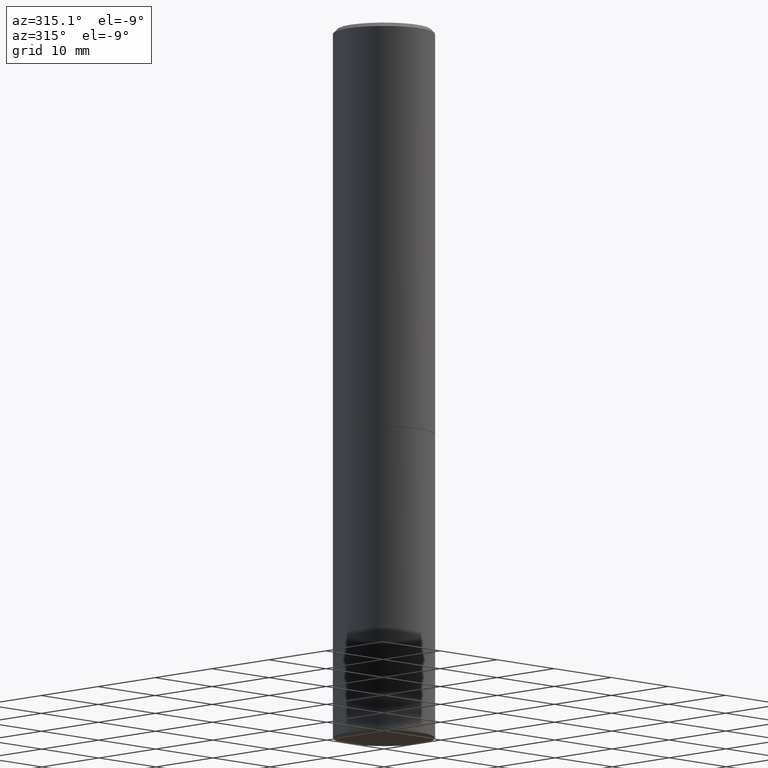
[diagram: clean part render]
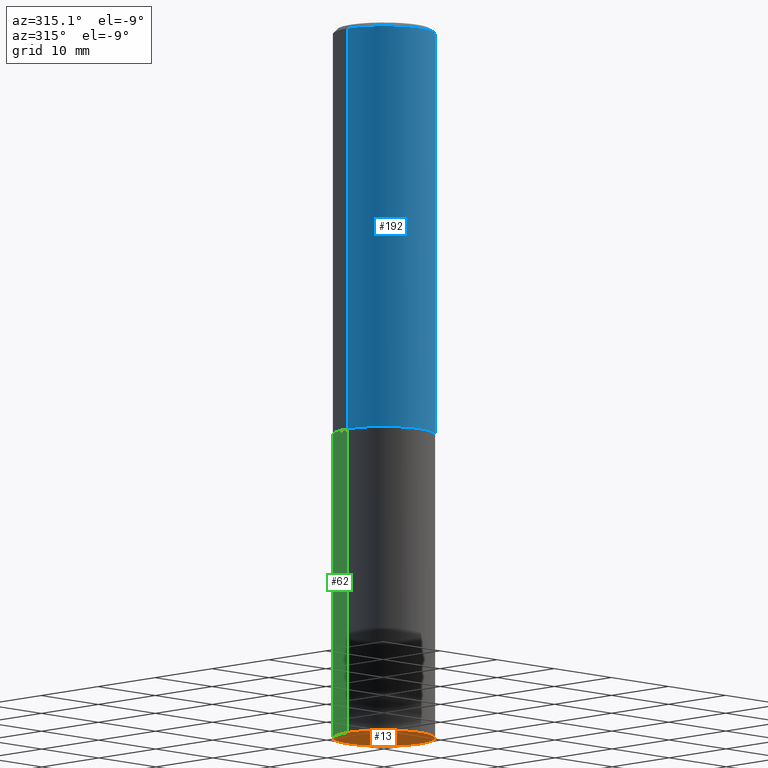
[diagram: same view with three faces highlighted in distinct colors, each labeled with its STEP entity id]
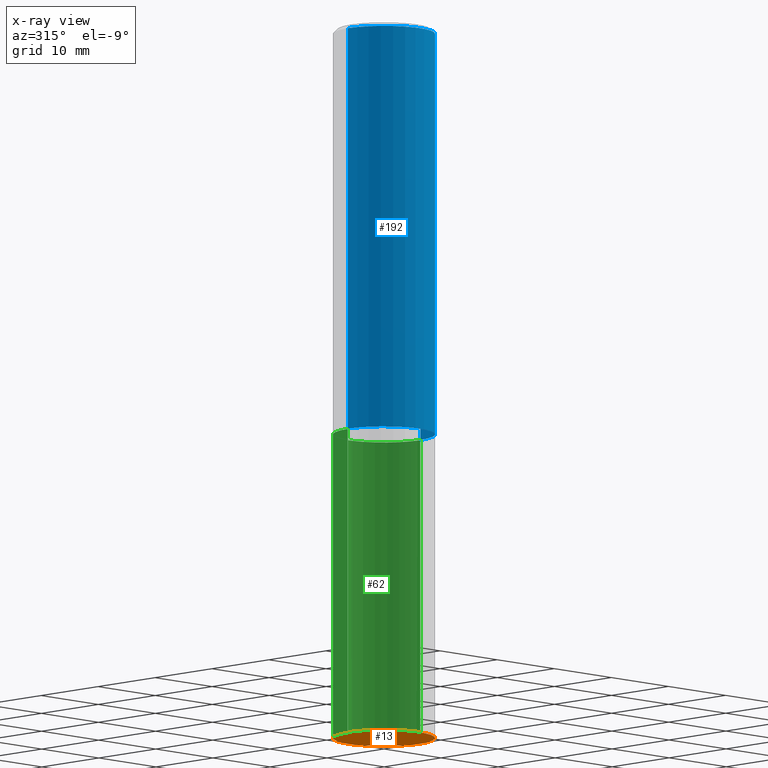
[diagram: x-ray of the same camera — body ghosted, the three highlighted faces saturated]
A machine part, auxiliary view with three faces highlighted in distinct colors.
The next image is the same camera in x-ray (body ghosted, the three faces saturated) — at least one of them is partly hidden behind the body in this view.
Their STEP definitions:

[orange] entity #13 — the highlighted planar face has unit normal (0, -0, -1).
#7 = CARTESIAN_POINT ( 'NONE',  ( 8.559140821647976968E-29, -1.222018468595100934E-14, -3.500000000000000000 ) ) ;
#13 = ADVANCED_FACE ( 'NONE', ( #319 ), #65, .T. ) ;
#33 = CIRCLE ( 'NONE', #347, 0.2500000000000000000 ) ;
#65 = PLANE ( 'NONE',  #170 ) ;
#95 = DIRECTION ( 'NONE',  ( 2.438088387897960049E-29, -3.491481338843145188E-15, -1.000000000000000000 ) ) ;
#98 = EDGE_CURVE ( 'NONE', #240, #189, #33, .T. ) ;
#129 = CARTESIAN_POINT ( 'NONE',  ( 8.559140821647976968E-29, -1.222018468595100934E-14, -3.500000000000000000 ) ) ;
#130 = CARTESIAN_POINT ( 'NONE',  ( 1.745740669421652072E-15, 0.2499999999999877598, -3.500000000000000888 ) ) ;
#137 = DIRECTION ( 'NONE',  ( -2.445468806185136597E-29, 3.491481338843145583E-15, 1.000000000000000000 ) ) ;
#139 = AXIS2_PLACEMENT_3D ( 'NONE', #7, #137, #220 ) ;
#144 = ORIENTED_EDGE ( 'NONE', *, *, #161, .F. ) ;
#160 = CARTESIAN_POINT ( 'NONE',  ( -0.2500000000000000000, -7.825216842418399394E-15, -3.500000000000000000 ) ) ;
#161 = EDGE_CURVE ( 'NONE', #189, #240, #223, .T. ) ;
#164 = ORIENTED_EDGE ( 'NONE', *, *, #98, .F. ) ;
#170 = AXIS2_PLACEMENT_3D ( 'NONE', #130, #95, #215 ) ;
#189 = VERTEX_POINT ( 'NONE', #160 ) ;
#215 = DIRECTION ( 'NONE',  ( -1.000000000000000000, 6.982962677686265922E-15, -4.876176775795935793E-29 ) ) ;
#220 = DIRECTION ( 'NONE',  ( 1.000000000000000000, -6.982962677686270655E-15, 0.000000000000000000 ) ) ;
#223 = CIRCLE ( 'NONE', #139, 0.2500000000000000000 ) ;
#227 = EDGE_LOOP ( 'NONE', ( #164, #144 ) ) ;
#240 = VERTEX_POINT ( 'NONE', #362 ) ;
#295 = DIRECTION ( 'NONE',  ( -2.445468806185136597E-29, 3.491481338843145583E-15, 1.000000000000000000 ) ) ;
#319 = FACE_OUTER_BOUND ( 'NONE', #227, .T. ) ;
#347 = AXIS2_PLACEMENT_3D ( 'NONE', #129, #295, #351 ) ;
#351 = DIRECTION ( 'NONE',  ( 1.000000000000000000, -6.982962677686270655E-15, 0.000000000000000000 ) ) ;
#362 = CARTESIAN_POINT ( 'NONE',  ( 0.2500000000000000000, -1.396592535537257602E-14, -3.500000000000000000 ) ) ;

[blue] entity #192 — the highlighted cylindrical surface (partial cylindrical patch) has radius 6.35 mm, axis along (-0, 0, 1).
#5 = ORIENTED_EDGE ( 'NONE', *, *, #41, .F. ) ;
#15 = DIRECTION ( 'NONE',  ( -2.445468806185136597E-29, 3.491481338843145583E-15, 1.000000000000000000 ) ) ;
#23 = LINE ( 'NONE', #105, #312 ) ;
#41 = EDGE_CURVE ( 'NONE', #210, #194, #247, .T. ) ;
#43 = CARTESIAN_POINT ( 'NONE',  ( 4.890937612370287172E-31, -6.982962677686310098E-17, -0.02000000000000005593 ) ) ;
#68 = CARTESIAN_POINT ( 'NONE',  ( -0.2500000000000000000, -1.748293572161903489E-15, -1.998999999999999888 ) ) ;
#72 = CARTESIAN_POINT ( 'NONE',  ( -0.2499999999999998057, 1.675911042644702196E-15, -0.02000000000000005593 ) ) ;
#80 = DIRECTION ( 'NONE',  ( -2.445468806185136877E-29, 3.491481338843145188E-15, 1.000000000000000000 ) ) ;
#96 = CIRCLE ( 'NONE', #202, 0.2499999999999998057 ) ;
#100 = CARTESIAN_POINT ( 'NONE',  ( 4.888492143564087591E-29, -6.979471196347447369E-15, -1.998999999999999888 ) ) ;
#105 = CARTESIAN_POINT ( 'NONE',  ( 0.2499999999999998890, -1.745740669421565889E-15, 1.219044193948983388E-29 ) ) ;
#109 = EDGE_CURVE ( 'NONE', #210, #236, #116, .T. ) ;
#116 = CIRCLE ( 'NONE', #188, 0.2500000000000000000 ) ;
#120 = ORIENTED_EDGE ( 'NONE', *, *, #141, .F. ) ;
#127 = DIRECTION ( 'NONE',  ( -2.445468806185136597E-29, 3.491481338843145583E-15, 1.000000000000000000 ) ) ;
#141 = EDGE_CURVE ( 'NONE', #194, #342, #96, .T. ) ;
#148 = ORIENTED_EDGE ( 'NONE', *, *, #245, .T. ) ;
#162 = CARTESIAN_POINT ( 'NONE',  ( 0.000000000000000000, 0.000000000000000000, 0.000000000000000000 ) ) ;
#165 = DIRECTION ( 'NONE',  ( -2.445468806185136597E-29, 3.491481338843145583E-15, 1.000000000000000000 ) ) ;
#179 = DIRECTION ( 'NONE',  ( 1.000000000000000000, -6.982962677686266711E-15, 0.000000000000000000 ) ) ;
#188 = AXIS2_PLACEMENT_3D ( 'NONE', #100, #165, #179 ) ;
#192 = ADVANCED_FACE ( 'NONE', ( #329 ), #356, .T. ) ;
#194 = VERTEX_POINT ( 'NONE', #72 ) ;
#202 = AXIS2_PLACEMENT_3D ( 'NONE', #43, #15, #249 ) ;
#210 = VERTEX_POINT ( 'NONE', #68 ) ;
#212 = ORIENTED_EDGE ( 'NONE', *, *, #109, .T. ) ;
#219 = EDGE_LOOP ( 'NONE', ( #5, #212, #148, #120 ) ) ;
#221 = CARTESIAN_POINT ( 'NONE',  ( -0.2499999999999998890, 1.776356839400249676E-15, -1.229733772563726025E-29 ) ) ;
#236 = VERTEX_POINT ( 'NONE', #272 ) ;
#245 = EDGE_CURVE ( 'NONE', #236, #342, #23, .T. ) ;
#246 = DIRECTION ( 'NONE',  ( 1.000000000000000000, -6.982962677686266711E-15, 4.876176775795935793E-29 ) ) ;
#247 = LINE ( 'NONE', #221, #364 ) ;
#249 = DIRECTION ( 'NONE',  ( 1.000000000000000000, -6.982962677686266711E-15, 0.000000000000000000 ) ) ;
#272 = CARTESIAN_POINT ( 'NONE',  ( 0.2500000000000000000, -8.725211865769014047E-15, -1.998999999999999888 ) ) ;
#285 = CARTESIAN_POINT ( 'NONE',  ( 0.2499999999999998057, -1.784954126219744611E-15, -0.02000000000000005593 ) ) ;
#297 = DIRECTION ( 'NONE',  ( -2.445468806185136877E-29, 3.491481338843145188E-15, 1.000000000000000000 ) ) ;
#311 = AXIS2_PLACEMENT_3D ( 'NONE', #162, #127, #246 ) ;
#312 = VECTOR ( 'NONE', #80, 39.37007874015748143 ) ;
#329 = FACE_OUTER_BOUND ( 'NONE', #219, .T. ) ;
#342 = VERTEX_POINT ( 'NONE', #285 ) ;
#356 = CYLINDRICAL_SURFACE ( 'NONE', #311, 0.2499999999999998890 ) ;
#364 = VECTOR ( 'NONE', #297, 39.37007874015748143 ) ;

[green] entity #62 — the highlighted cylindrical surface (partial cylindrical patch) has radius 6.35 mm, axis along (-0, 0, 1).
#3 = EDGE_CURVE ( 'NONE', #189, #167, #10, .T. ) ;
#4 = DIRECTION ( 'NONE',  ( 1.000000000000000000, -6.982962677686266711E-15, 4.876176775795935793E-29 ) ) ;
#8 = ORIENTED_EDGE ( 'NONE', *, *, #98, .T. ) ;
#10 = LINE ( 'NONE', #275, #133 ) ;
#14 = DIRECTION ( 'NONE',  ( -2.445468806185136877E-29, 3.491481338843145188E-15, 1.000000000000000000 ) ) ;
#33 = CIRCLE ( 'NONE', #347, 0.2500000000000000000 ) ;
#46 = DIRECTION ( 'NONE',  ( 1.000000000000000000, -6.982962677686266711E-15, 0.000000000000000000 ) ) ;
#51 = AXIS2_PLACEMENT_3D ( 'NONE', #101, #76, #46 ) ;
#53 = VERTEX_POINT ( 'NONE', #82 ) ;
#62 = ADVANCED_FACE ( 'NONE', ( #289 ), #234, .T. ) ;
#69 = EDGE_CURVE ( 'NONE', #240, #53, #154, .T. ) ;
#73 = VECTOR ( 'NONE', #14, 39.37007874015748143 ) ;
#76 = DIRECTION ( 'NONE',  ( -2.445468806185136597E-29, 3.491481338843145583E-15, 1.000000000000000000 ) ) ;
#82 = CARTESIAN_POINT ( 'NONE',  ( 0.2500000000000000000, -8.728703347107857054E-15, -2.000000000000000000 ) ) ;
#89 = CIRCLE ( 'NONE', #51, 0.2500000000000000000 ) ;
#98 = EDGE_CURVE ( 'NONE', #240, #189, #33, .T. ) ;
#101 = CARTESIAN_POINT ( 'NONE',  ( 4.890937612370273194E-29, -6.982962677686291165E-15, -2.000000000000000000 ) ) ;
#129 = CARTESIAN_POINT ( 'NONE',  ( 8.559140821647976968E-29, -1.222018468595100934E-14, -3.500000000000000000 ) ) ;
#133 = VECTOR ( 'NONE', #250, 39.37007874015748143 ) ;
#153 = EDGE_LOOP ( 'NONE', ( #8, #173, #174, #197 ) ) ;
#154 = LINE ( 'NONE', #237, #73 ) ;
#160 = CARTESIAN_POINT ( 'NONE',  ( -0.2500000000000000000, -7.825216842418399394E-15, -3.500000000000000000 ) ) ;
#167 = VERTEX_POINT ( 'NONE', #252 ) ;
#172 = DIRECTION ( 'NONE',  ( -2.445468806185136597E-29, 3.491481338843145583E-15, 1.000000000000000000 ) ) ;
#173 = ORIENTED_EDGE ( 'NONE', *, *, #3, .T. ) ;
#174 = ORIENTED_EDGE ( 'NONE', *, *, #317, .F. ) ;
#189 = VERTEX_POINT ( 'NONE', #160 ) ;
#197 = ORIENTED_EDGE ( 'NONE', *, *, #69, .F. ) ;
#204 = CARTESIAN_POINT ( 'NONE',  ( 0.000000000000000000, 0.000000000000000000, 0.000000000000000000 ) ) ;
#233 = AXIS2_PLACEMENT_3D ( 'NONE', #204, #172, #4 ) ;
#234 = CYLINDRICAL_SURFACE ( 'NONE', #233, 0.2500000000000000000 ) ;
#237 = CARTESIAN_POINT ( 'NONE',  ( 0.2500000000000000000, -1.745740669421566678E-15, 1.219044193948983948E-29 ) ) ;
#240 = VERTEX_POINT ( 'NONE', #362 ) ;
#250 = DIRECTION ( 'NONE',  ( -2.445468806185136877E-29, 3.491481338843145188E-15, 1.000000000000000000 ) ) ;
#252 = CARTESIAN_POINT ( 'NONE',  ( -0.2500000000000000000, -7.825216842418399394E-15, -2.000000000000000000 ) ) ;
#275 = CARTESIAN_POINT ( 'NONE',  ( -0.2500000000000000000, 1.776356839400250465E-15, -1.229733772563726445E-29 ) ) ;
#289 = FACE_OUTER_BOUND ( 'NONE', #153, .T. ) ;
#295 = DIRECTION ( 'NONE',  ( -2.445468806185136597E-29, 3.491481338843145583E-15, 1.000000000000000000 ) ) ;
#317 = EDGE_CURVE ( 'NONE', #53, #167, #89, .T. ) ;
#347 = AXIS2_PLACEMENT_3D ( 'NONE', #129, #295, #351 ) ;
#351 = DIRECTION ( 'NONE',  ( 1.000000000000000000, -6.982962677686270655E-15, 0.000000000000000000 ) ) ;
#362 = CARTESIAN_POINT ( 'NONE',  ( 0.2500000000000000000, -1.396592535537257602E-14, -3.500000000000000000 ) ) ;